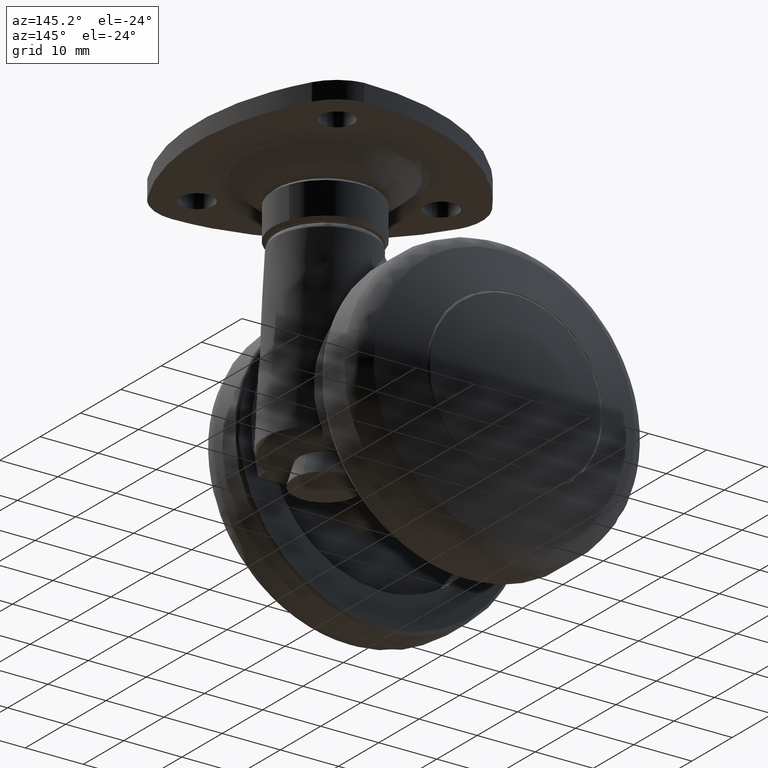
[diagram: clean part render]
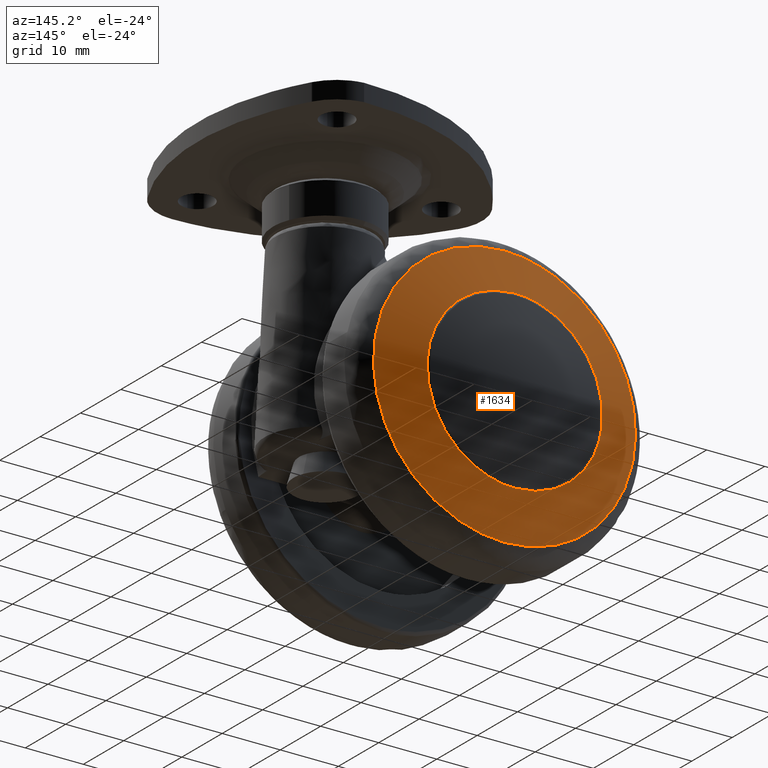
[diagram: same view with one face highlighted and labeled with its STEP entity id]
A machine part, auxiliary view. The second image highlights one B-rep face of the part: STEP entity #1634.
In plain terms, the highlighted face is a freeform B-spline surface patch.
Its self-contained STEP definition (entity closure, byte-faithful):
#671=CARTESIAN_POINT('',(14.994445936789401,-22.500000000000000,-1.782299371145777));
#672=VERTEX_POINT('',#671);
#678=CARTESIAN_POINT('',(0.0,-22.500000000000000,15.100000000000000));
#679=VERTEX_POINT('',#678);
#680=CARTESIAN_POINT('',(14.994445936789404,-22.500000000000004,-1.782299371145777));
#681=CARTESIAN_POINT('',(15.100000000000003,-22.500000000000000,-0.894275327774372));
#682=CARTESIAN_POINT('',(15.100000000000000,-22.500000000000000,1.789254E-015));
#683=CARTESIAN_POINT('',(15.100000000000005,-22.500000000000004,15.100000000000005));
#684=CARTESIAN_POINT('',(0.0,-22.500000000000000,15.100000000000000));
#692=(BOUNDED_CURVE()B_SPLINE_CURVE(2,(#680,#681,#682,#683,#684),.UNSPECIFIED.,.F.,.U.)B_SPLINE_CURVE_WITH_KNOTS((3,2,3),(0.229562671572623,0.250000000000000,0.500000000000000),.UNSPECIFIED.)CURVE()GEOMETRIC_REPRESENTATION_ITEM()RATIONAL_B_SPLINE_CURVE((0.956027142388037,0.976056180371832,1.0,0.707106781186547,1.0))REPRESENTATION_ITEM(''));
#693=EDGE_CURVE('',#672,#679,#692,.T.);
#695=CARTESIAN_POINT('',(-15.071836940852060,-22.500000000000000,0.921808672000669));
#696=VERTEX_POINT('',#695);
#697=CARTESIAN_POINT('',(0.0,-22.500000000000000,15.100000000000000));
#698=CARTESIAN_POINT('',(-14.204684531332983,-22.500000000000000,15.100000000000000));
#699=CARTESIAN_POINT('',(-15.071836940852064,-22.500000000000004,0.921808672000669));
#707=(BOUNDED_CURVE()B_SPLINE_CURVE(2,(#697,#698,#699),.UNSPECIFIED.,.F.,.U.)B_SPLINE_CURVE_WITH_KNOTS((3,3),(0.500000000000000,0.739333240149062),.UNSPECIFIED.)CURVE()GEOMETRIC_REPRESENTATION_ITEM()RATIONAL_B_SPLINE_CURVE((1.0,0.719603667694752,0.976072637281730))REPRESENTATION_ITEM(''));
#708=EDGE_CURVE('',#679,#696,#707,.T.);
#782=CARTESIAN_POINT('',(0.0,-22.500000000000000,-15.100000000000000));
#783=VERTEX_POINT('',#782);
#784=CARTESIAN_POINT('',(-15.071836940852064,-22.500000000000004,0.921808672000669));
#785=CARTESIAN_POINT('',(-15.100000000000003,-22.500000000000000,0.461334554290018));
#786=CARTESIAN_POINT('',(-15.100000000000000,-22.500000000000000,1.789254E-015));
#787=CARTESIAN_POINT('',(-15.100000000000005,-22.500000000000004,-15.100000000000005));
#788=CARTESIAN_POINT('',(0.0,-22.500000000000000,-15.100000000000000));
#796=(BOUNDED_CURVE()B_SPLINE_CURVE(2,(#784,#785,#786,#787,#788),.UNSPECIFIED.,.F.,.U.)B_SPLINE_CURVE_WITH_KNOTS((3,2,3),(0.739333240149062,0.750000000000000,1.0),.UNSPECIFIED.)CURVE()GEOMETRIC_REPRESENTATION_ITEM()RATIONAL_B_SPLINE_CURVE((0.976072637281730,0.987503113491795,1.0,0.707106781186547,1.0))REPRESENTATION_ITEM(''));
#797=EDGE_CURVE('',#696,#783,#796,.T.);
#799=CARTESIAN_POINT('',(0.0,-22.500000000000000,-15.100000000000000));
#800=CARTESIAN_POINT('',(13.411451169538910,-22.500000000000004,-15.100000000000001));
#801=CARTESIAN_POINT('',(14.994445936789404,-22.500000000000004,-1.782299371145777));
#809=(BOUNDED_CURVE()B_SPLINE_CURVE(2,(#799,#800,#801),.UNSPECIFIED.,.F.,.U.)B_SPLINE_CURVE_WITH_KNOTS((3,3),(0.0,0.229562671572623),.UNSPECIFIED.)CURVE()GEOMETRIC_REPRESENTATION_ITEM()RATIONAL_B_SPLINE_CURVE((1.0,0.731050600814716,0.956027142388037))REPRESENTATION_ITEM(''));
#810=EDGE_CURVE('',#783,#672,#809,.T.);
#1249=CARTESIAN_POINT('',(9.087749509933360,-19.934754244704589,20.643707274509790));
#1250=VERTEX_POINT('',#1249);
#1251=CARTESIAN_POINT('',(0.0,-19.934754434471500,22.555483695890050));
#1252=VERTEX_POINT('',#1251);
#1253=CARTESIAN_POINT('',(9.087749509933360,-19.934754244704589,20.643707274509797));
#1254=CARTESIAN_POINT('',(4.744963543890293,-19.934754434471504,22.555483695890054));
#1255=CARTESIAN_POINT('',(0.0,-19.934754434471500,22.555483695890050));
#1263=(BOUNDED_CURVE()B_SPLINE_CURVE(2,(#1253,#1254,#1255),.UNSPECIFIED.,.F.,.U.)B_SPLINE_CURVE_WITH_KNOTS((3,3),(0.431585009860516,0.500000000000000),.UNSPECIFIED.)CURVE()GEOMETRIC_REPRESENTATION_ITEM()RATIONAL_B_SPLINE_CURVE((0.883563120517155,0.919846853291823,1.0))REPRESENTATION_ITEM(''));
#1264=EDGE_CURVE('',#1250,#1252,#1263,.T.);
#1284=CARTESIAN_POINT('',(20.643707274509790,-19.934754244704589,-9.087749509933353));
#1285=VERTEX_POINT('',#1284);
#1299=CARTESIAN_POINT('',(0.0,-19.934754434471500,-22.555483695890040));
#1300=VERTEX_POINT('',#1299);
#1301=CARTESIAN_POINT('',(0.0,-19.934754434471500,-22.555483695890040));
#1302=CARTESIAN_POINT('',(14.714956622336416,-19.934754434471493,-22.555483695890043));
#1303=CARTESIAN_POINT('',(20.643707274509797,-19.934754244704589,-9.087749509933353));
#1311=(BOUNDED_CURVE()B_SPLINE_CURVE(2,(#1301,#1302,#1303),.UNSPECIFIED.,.F.,.U.)B_SPLINE_CURVE_WITH_KNOTS((3,3),(0.0,0.181585009860516),.UNSPECIFIED.)CURVE()GEOMETRIC_REPRESENTATION_ITEM()RATIONAL_B_SPLINE_CURVE((1.0,0.787259927894724,0.883563120517155))REPRESENTATION_ITEM(''));
#1312=EDGE_CURVE('',#1300,#1285,#1311,.T.);
#1314=CARTESIAN_POINT('',(0.0,-19.934754434471500,22.555483695890050));
#1315=CARTESIAN_POINT('',(-22.555483695890047,-19.934754434471508,22.555483695890047));
#1316=CARTESIAN_POINT('',(-22.555483695890050,-19.934754434471500,1.789254E-015));
#1317=CARTESIAN_POINT('',(-22.555483695890047,-19.934754434471508,-22.555483695890047));
#1318=CARTESIAN_POINT('',(0.0,-19.934754434471500,-22.555483695890040));
#1326=(BOUNDED_CURVE()B_SPLINE_CURVE(2,(#1314,#1315,#1316,#1317,#1318),.UNSPECIFIED.,.F.,.U.)B_SPLINE_CURVE_WITH_KNOTS((3,2,3),(0.500000000000000,0.750000000000000,1.0),.UNSPECIFIED.)CURVE()GEOMETRIC_REPRESENTATION_ITEM()RATIONAL_B_SPLINE_CURVE((1.0,0.707106781186547,1.0,0.707106781186547,1.0))REPRESENTATION_ITEM(''));
#1327=EDGE_CURVE('',#1252,#1300,#1326,.T.);
#1349=CARTESIAN_POINT('',(20.643707274509797,-19.934754244704589,-9.087749509933353));
#1350=CARTESIAN_POINT('',(22.555483695890050,-19.934754434471500,-4.744963543890288));
#1351=CARTESIAN_POINT('',(22.555483695890050,-19.934754434471500,1.789254E-015));
#1352=CARTESIAN_POINT('',(22.555483695890047,-19.934754434471500,14.714956622336434));
#1353=CARTESIAN_POINT('',(9.087749509933360,-19.934754244704596,20.643707274509790));
#1361=(BOUNDED_CURVE()B_SPLINE_CURVE(2,(#1349,#1350,#1351,#1352,#1353),.UNSPECIFIED.,.F.,.U.)B_SPLINE_CURVE_WITH_KNOTS((3,2,3),(0.181585009860516,0.250000000000000,0.431585009860516),.UNSPECIFIED.)CURVE()GEOMETRIC_REPRESENTATION_ITEM()RATIONAL_B_SPLINE_CURVE((0.883563120517155,0.919846853291823,1.0,0.787259927894724,0.883563120517155))REPRESENTATION_ITEM(''));
#1362=EDGE_CURVE('',#1285,#1250,#1361,.T.);
#1598=CARTESIAN_POINT('',(-23.496149942089705,-14.038550127731490,-23.496159194671790));
#1599=CARTESIAN_POINT('',(-12.302814989209493,-19.022279892763255,-24.605639667904818));
#1600=CARTESIAN_POINT('',(12.302718326948122,-19.022279892763233,-24.605639667904818));
#1601=CARTESIAN_POINT('',(23.495981982561212,-14.038624909848737,-23.496175842705028));
#1602=CARTESIAN_POINT('',(-24.605630893487540,-19.022284003206046,-12.302820291486842));
#1603=CARTESIAN_POINT('',(-12.912541177236481,-24.500000000000000,-12.912546262084330));
#1604=CARTESIAN_POINT('',(12.912439724403830,-24.499999999999972,-12.912546262084330));
#1605=CARTESIAN_POINT('',(24.605455826190866,-19.022366014444689,-12.302829420178824));
#1606=CARTESIAN_POINT('',(-24.605630893487540,-19.022284003206046,12.302820621074964));
#1607=CARTESIAN_POINT('',(-12.912541177236481,-24.500000000000000,12.912546608006791));
#1608=CARTESIAN_POINT('',(12.912439724403830,-24.499999999999979,12.912546608006791));
#1609=CARTESIAN_POINT('',(24.605455826190866,-19.022366014444689,12.302829749767190));
#1610=CARTESIAN_POINT('',(-23.496149885324918,-14.038549872746909,23.496159767360616));
#1611=CARTESIAN_POINT('',(-12.302814958083411,-19.022279613129580,24.605640264828839));
#1612=CARTESIAN_POINT('',(12.302718295822286,-19.022279613129559,24.605640264828839));
#1613=CARTESIAN_POINT('',(23.495981925796809,-14.038624654863803,23.496176415394217));
#1621=(BOUNDED_SURFACE()B_SPLINE_SURFACE(2,2,((#1598,#1602,#1606,#1610),(#1599,#1603,#1607,#1611),(#1600,#1604,#1608,#1612),(#1601,#1605,#1609,#1613)),.UNSPECIFIED.,.F.,.F.,.U.)B_SPLINE_SURFACE_WITH_KNOTS((3,1,3),(3,1,3),(9.129814129447937,33.807220128434842,58.484432238960267),(9.129804411697387,33.807220128434842,58.484636506271357),.UNSPECIFIED.)GEOMETRIC_REPRESENTATION_ITEM()RATIONAL_B_SPLINE_SURFACE(((1.099119745921070,1.049559853444287,1.049559853444287,1.099119748576454),(1.049559892476784,1.0,1.0,1.049559895132167),(1.049559892476784,1.0,1.0,1.049559895132167),(1.099118967148295,1.049559074671511,1.049559074671511,1.099118969803678)))REPRESENTATION_ITEM('')SURFACE());
#1622=ORIENTED_EDGE('',*,*,#1312,.T.);
#1623=ORIENTED_EDGE('',*,*,#1362,.T.);
#1624=ORIENTED_EDGE('',*,*,#1264,.T.);
#1625=ORIENTED_EDGE('',*,*,#1327,.T.);
#1626=EDGE_LOOP('',(#1622,#1623,#1624,#1625));
#1627=FACE_OUTER_BOUND('',#1626,.T.);
#1628=ORIENTED_EDGE('',*,*,#708,.F.);
#1629=ORIENTED_EDGE('',*,*,#693,.F.);
#1630=ORIENTED_EDGE('',*,*,#810,.F.);
#1631=ORIENTED_EDGE('',*,*,#797,.F.);
#1632=EDGE_LOOP('',(#1628,#1629,#1630,#1631));
#1633=FACE_BOUND('',#1632,.T.);
#1634=ADVANCED_FACE('',(#1627,#1633),#1621,.T.);